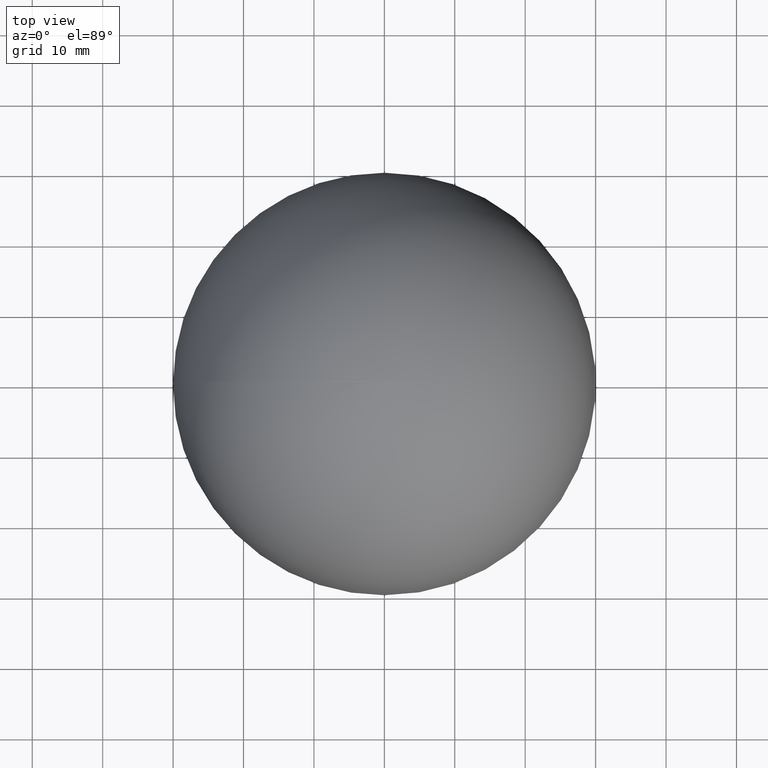
[diagram: clean part render]
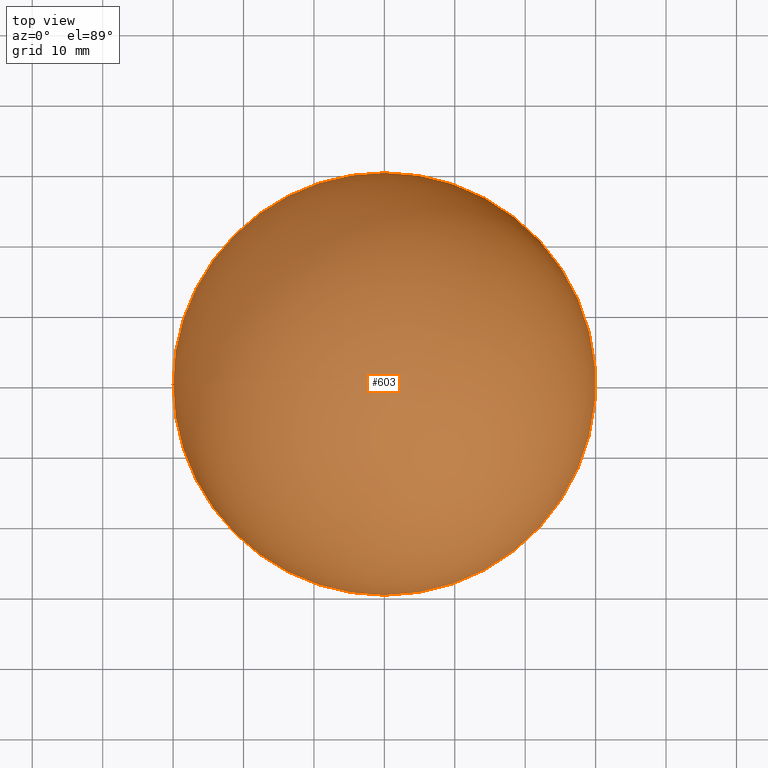
[diagram: same view with one face highlighted and labeled with its STEP entity id]
A machine part, top view. The second image highlights one B-rep face of the part: STEP entity #603.
In plain terms, the highlighted spherical surface has radius 30 mm.
Its self-contained STEP definition (entity closure, byte-faithful):
#454 = DIRECTION ( 'NONE',  ( 1.000000000000000000, 0.0000000000000000000, 1.224646799147353000E-016 ) ) ;
#603 = ADVANCED_FACE ( 'NONE', ( #8980 ), #4061, .T. ) ;
#880 = DIRECTION ( 'NONE',  ( -1.000000000000000000, 0.0000000000000000000, 0.0000000000000000000 ) ) ;
#1681 = DIRECTION ( 'NONE',  ( -0.0000000000000000000, 0.0000000000000000000, -1.000000000000000000 ) ) ;
#2099 = EDGE_CURVE ( 'NONE', #5404, #7653, #4167, .T. ) ;
#2972 = ORIENTED_EDGE ( 'NONE', *, *, #2099, .T. ) ;
#3129 = CARTESIAN_POINT ( 'NONE',  ( -5.510910596163076900E-015, -30.00000000000000000, 0.0000000000000000000 ) ) ;
#3248 = DIRECTION ( 'NONE',  ( 0.0000000000000000000, 0.0000000000000000000, 1.000000000000000000 ) ) ;
#3394 = DIRECTION ( 'NONE',  ( -1.224646799147353200E-016, 1.499759782661853000E-032, 1.000000000000000000 ) ) ;
#3538 = AXIS2_PLACEMENT_3D ( 'NONE', #3896, #1681, #880 ) ;
#3896 = CARTESIAN_POINT ( 'NONE',  ( 0.0000000000000000000, 0.0000000000000000000, 0.0000000000000000000 ) ) ;
#4061 = SPHERICAL_SURFACE ( 'NONE', #8990, 30.00000000000000000 ) ;
#4167 = CIRCLE ( 'NONE', #4653, 30.00000000000000000 ) ;
#4562 = EDGE_CURVE ( 'NONE', #5404, #7653, #5387, .T. ) ;
#4653 = AXIS2_PLACEMENT_3D ( 'NONE', #7821, #3394, #454 ) ;
#4809 = DIRECTION ( 'NONE',  ( -1.000000000000000000, 1.224646799147349300E-016, 0.0000000000000000000 ) ) ;
#5387 = CIRCLE ( 'NONE', #3538, 30.00000000000000000 ) ;
#5404 = VERTEX_POINT ( 'NONE', #3129 ) ;
#6194 = ORIENTED_EDGE ( 'NONE', *, *, #4562, .F. ) ;
#6878 = CARTESIAN_POINT ( 'NONE',  ( 0.0000000000000000000, 0.0000000000000000000, 0.0000000000000000000 ) ) ;
#7424 = CARTESIAN_POINT ( 'NONE',  ( 1.836970198721018200E-015, 30.00000000000000000, 0.0000000000000000000 ) ) ;
#7479 = EDGE_LOOP ( 'NONE', ( #6194, #2972 ) ) ;
#7653 = VERTEX_POINT ( 'NONE', #7424 ) ;
#7821 = CARTESIAN_POINT ( 'NONE',  ( 0.0000000000000000000, 0.0000000000000000000, 0.0000000000000000000 ) ) ;
#8980 = FACE_OUTER_BOUND ( 'NONE', #7479, .T. ) ;
#8990 = AXIS2_PLACEMENT_3D ( 'NONE', #6878, #3248, #4809 ) ;